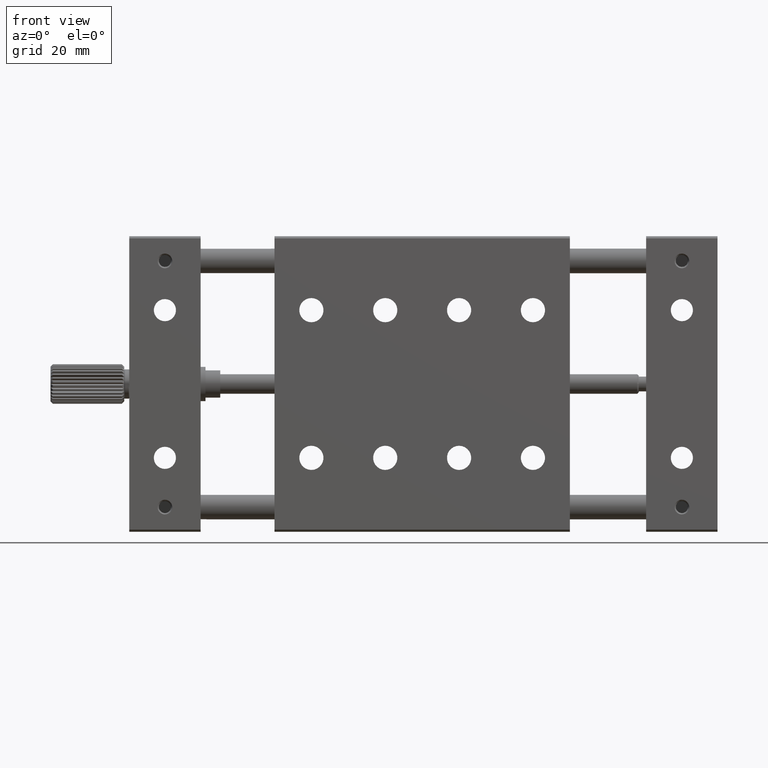
[diagram: clean part render]
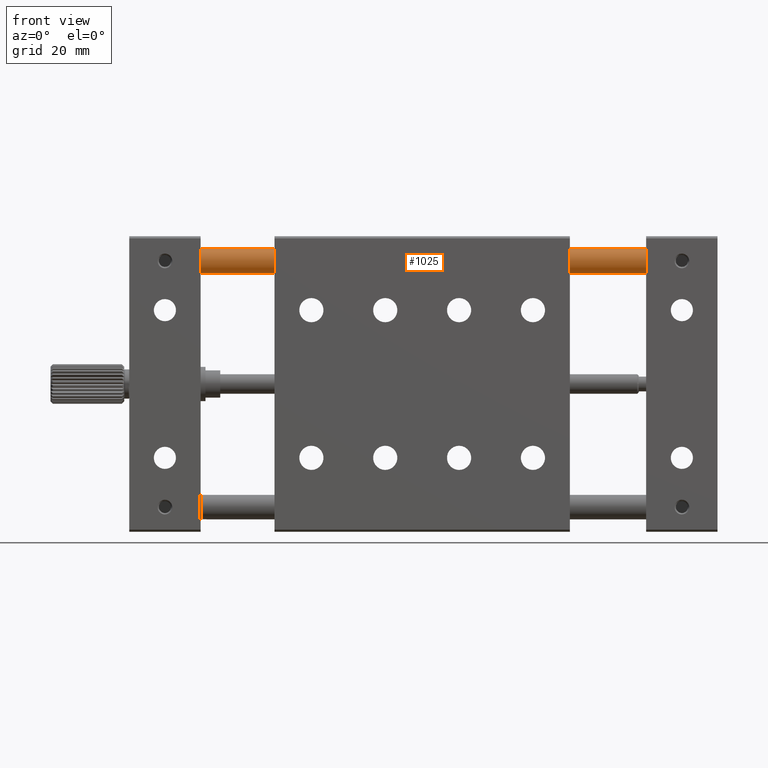
[diagram: same view with one face highlighted and labeled with its STEP entity id]
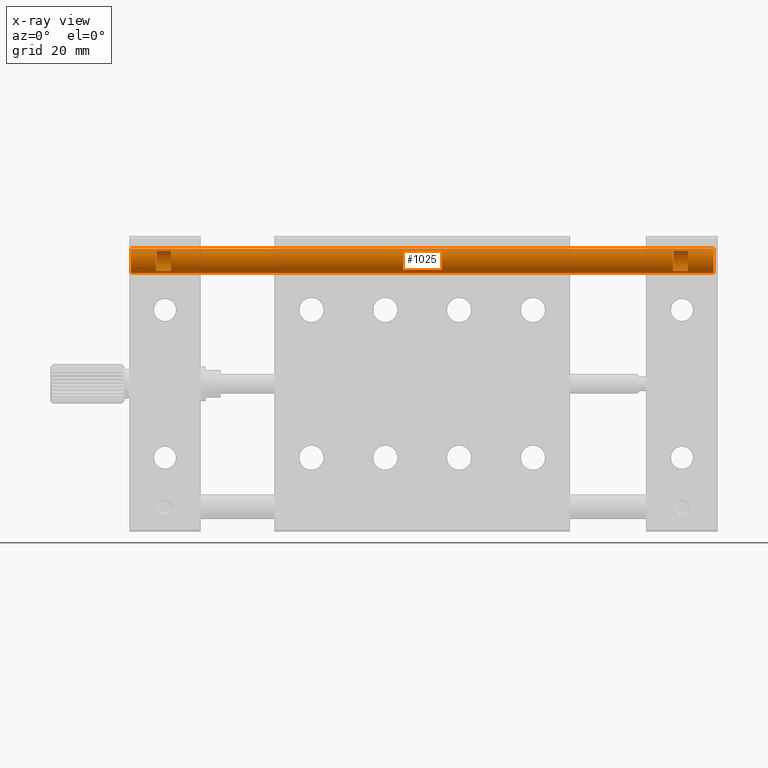
[diagram: x-ray of the same camera — body ghosted, the highlighted face saturated]
A machine part, front view. The second image highlights one B-rep face of the part: STEP entity #1025.
The next image is the same camera in x-ray: the body ghosted, the highlighted face saturated — about 0% of this face is hidden behind the body in this view.
In plain terms, the highlighted cylindrical surface (bore or boss wall) has radius 2.4995 mm, axis along (1, 0, 0).
Its self-contained STEP definition (entity closure, byte-faithful):
#71 = CARTESIAN_POINT ( 'NONE',  ( 5.500000000000003553, 3.499999999999999556, -6.999374964832771440 ) ) ;
#140 = CIRCLE ( 'NONE', #3387, 2.499500000000009603 ) ;
#282 = ORIENTED_EDGE ( 'NONE', *, *, #4574, .T. ) ;
#491 = CARTESIAN_POINT ( 'NONE',  ( 8.499999999999994671, 3.499999999999999556, -3.000625035167228116 ) ) ;
#526 = LINE ( 'NONE', #5251, #7253 ) ;
#538 = EDGE_CURVE ( 'NONE', #5456, #6959, #526, .T. ) ;
#545 = AXIS2_PLACEMENT_3D ( 'NONE', #4207, #674, #5357 ) ;
#597 = VERTEX_POINT ( 'NONE', #4059 ) ;
#652 = DIRECTION ( 'NONE',  ( 1.000000000000000000, 0.000000000000000000, 0.000000000000000000 ) ) ;
#674 = DIRECTION ( 'NONE',  ( -1.000000000000000000, -0.000000000000000000, -0.000000000000000000 ) ) ;
#915 = ORIENTED_EDGE ( 'NONE', *, *, #5325, .T. ) ;
#1025 = ADVANCED_FACE ( 'NONE', ( #3532, #6765, #5521, #4767 ), #2169, .T. ) ;
#1242 = DIRECTION ( 'NONE',  ( -1.000000000000000000, -0.000000000000000000, -0.000000000000000000 ) ) ;
#1253 = VECTOR ( 'NONE', #4603, 1000.000000000000000 ) ;
#1444 = DIRECTION ( 'NONE',  ( 0.000000000000000000, 1.000000000000000000, 0.000000000000000000 ) ) ;
#1612 = EDGE_CURVE ( 'NONE', #6075, #6075, #4016, .T. ) ;
#1617 = ORIENTED_EDGE ( 'NONE', *, *, #2295, .T. ) ;
#1841 = VERTEX_POINT ( 'NONE', #4010 ) ;
#1863 = EDGE_CURVE ( 'NONE', #3898, #3898, #6988, .T. ) ;
#2023 = CARTESIAN_POINT ( 'NONE',  ( 110.5000000000000000, 5.000000000000000000, -5.000000000000000000 ) ) ;
#2169 = CYLINDRICAL_SURFACE ( 'NONE', #7551, 2.499500000000009603 ) ;
#2295 = EDGE_CURVE ( 'NONE', #1841, #7139, #6298, .T. ) ;
#2635 = AXIS2_PLACEMENT_3D ( 'NONE', #3504, #5536, #1444 ) ;
#2639 = EDGE_LOOP ( 'NONE', ( #4743 ) ) ;
#2800 = EDGE_CURVE ( 'NONE', #6016, #5456, #4320, .T. ) ;
#2838 = CARTESIAN_POINT ( 'NONE',  ( 113.5000000000000000, 3.499999999999998668, -6.999374964832771440 ) ) ;
#2873 = CARTESIAN_POINT ( 'NONE',  ( 118.7000000000000028, 5.000000000000000000, -5.000000000000000000 ) ) ;
#2900 = AXIS2_PLACEMENT_3D ( 'NONE', #6713, #7511, #5338 ) ;
#3172 = EDGE_LOOP ( 'NONE', ( #5691, #4496, #282, #1617 ) ) ;
#3249 = EDGE_LOOP ( 'NONE', ( #915, #5214, #8377, #3883 ) ) ;
#3387 = AXIS2_PLACEMENT_3D ( 'NONE', #6699, #8022, #8601 ) ;
#3504 = CARTESIAN_POINT ( 'NONE',  ( 8.499999999999992895, 5.000000000000000000, -5.000000000000000000 ) ) ;
#3532 = FACE_BOUND ( 'NONE', #3172, .T. ) ;
#3806 = LINE ( 'NONE', #6514, #1253 ) ;
#3839 = ORIENTED_EDGE ( 'NONE', *, *, #1863, .T. ) ;
#3883 = ORIENTED_EDGE ( 'NONE', *, *, #4688, .T. ) ;
#3898 = VERTEX_POINT ( 'NONE', #3994 ) ;
#3994 = CARTESIAN_POINT ( 'NONE',  ( 0.3000000000000085931, 7.499500000000010047, -5.000000000000000000 ) ) ;
#4010 = CARTESIAN_POINT ( 'NONE',  ( 110.5000000000000000, 3.499999999999998668, -6.999374964832771440 ) ) ;
#4016 = CIRCLE ( 'NONE', #5855, 2.499500000000009603 ) ;
#4052 = DIRECTION ( 'NONE',  ( 1.000000000000000000, 0.000000000000000000, 0.000000000000000000 ) ) ;
#4059 = CARTESIAN_POINT ( 'NONE',  ( 113.5000000000000000, 3.499999999999999112, -3.000625035167228116 ) ) ;
#4207 = CARTESIAN_POINT ( 'NONE',  ( 5.500000000000005329, 5.000000000000000000, -5.000000000000000000 ) ) ;
#4320 = CIRCLE ( 'NONE', #2635, 2.499500000000009603 ) ;
#4418 = VERTEX_POINT ( 'NONE', #2838 ) ;
#4496 = ORIENTED_EDGE ( 'NONE', *, *, #6797, .T. ) ;
#4574 = EDGE_CURVE ( 'NONE', #4418, #1841, #3806, .T. ) ;
#4603 = DIRECTION ( 'NONE',  ( -1.000000000000000000, -0.000000000000000000, -0.000000000000000000 ) ) ;
#4688 = EDGE_CURVE ( 'NONE', #6959, #5639, #6478, .T. ) ;
#4705 = DIRECTION ( 'NONE',  ( -1.000000000000000000, -0.000000000000000000, -0.000000000000000000 ) ) ;
#4743 = ORIENTED_EDGE ( 'NONE', *, *, #1612, .T. ) ;
#4767 = FACE_OUTER_BOUND ( 'NONE', #2639, .T. ) ;
#4858 = DIRECTION ( 'NONE',  ( -1.000000000000000000, -0.000000000000000000, -0.000000000000000000 ) ) ;
#5175 = CARTESIAN_POINT ( 'NONE',  ( 110.5000000000000000, 3.499999999999999112, -3.000625035167228116 ) ) ;
#5214 = ORIENTED_EDGE ( 'NONE', *, *, #2800, .T. ) ;
#5251 = CARTESIAN_POINT ( 'NONE',  ( 119.0000000000000142, 3.499999999999997780, -6.999374964832771440 ) ) ;
#5325 = EDGE_CURVE ( 'NONE', #5639, #6016, #7508, .T. ) ;
#5338 = DIRECTION ( 'NONE',  ( 0.000000000000000000, 1.000000000000000000, 0.000000000000000000 ) ) ;
#5349 = VECTOR ( 'NONE', #4052, 1000.000000000000000 ) ;
#5357 = DIRECTION ( 'NONE',  ( 0.000000000000000000, 1.000000000000000000, 0.000000000000000000 ) ) ;
#5429 = DIRECTION ( 'NONE',  ( 0.000000000000000000, 1.000000000000000000, 0.000000000000000000 ) ) ;
#5456 = VERTEX_POINT ( 'NONE', #6435 ) ;
#5521 = FACE_BOUND ( 'NONE', #3249, .T. ) ;
#5536 = DIRECTION ( 'NONE',  ( 1.000000000000000000, 0.000000000000000000, 0.000000000000000000 ) ) ;
#5639 = VERTEX_POINT ( 'NONE', #8507 ) ;
#5656 = DIRECTION ( 'NONE',  ( 0.000000000000000000, 1.000000000000000000, 0.000000000000000000 ) ) ;
#5691 = ORIENTED_EDGE ( 'NONE', *, *, #6519, .T. ) ;
#5850 = EDGE_LOOP ( 'NONE', ( #3839 ) ) ;
#5855 = AXIS2_PLACEMENT_3D ( 'NONE', #2873, #4858, #5656 ) ;
#5870 = AXIS2_PLACEMENT_3D ( 'NONE', #2023, #4705, #8159 ) ;
#6016 = VERTEX_POINT ( 'NONE', #491 ) ;
#6075 = VERTEX_POINT ( 'NONE', #6655 ) ;
#6298 = CIRCLE ( 'NONE', #5870, 2.499500000000009603 ) ;
#6435 = CARTESIAN_POINT ( 'NONE',  ( 8.499999999999994671, 3.499999999999999556, -6.999374964832771440 ) ) ;
#6478 = CIRCLE ( 'NONE', #545, 2.499500000000009603 ) ;
#6514 = CARTESIAN_POINT ( 'NONE',  ( 119.0000000000000142, 3.499999999999997780, -6.999374964832771440 ) ) ;
#6519 = EDGE_CURVE ( 'NONE', #7139, #597, #6928, .T. ) ;
#6655 = CARTESIAN_POINT ( 'NONE',  ( 118.7000000000000028, 7.499500000000010047, -5.000000000000000000 ) ) ;
#6699 = CARTESIAN_POINT ( 'NONE',  ( 113.5000000000000000, 5.000000000000000000, -5.000000000000000000 ) ) ;
#6713 = CARTESIAN_POINT ( 'NONE',  ( 0.3000000000000085931, 5.000000000000000000, -5.000000000000000000 ) ) ;
#6765 = FACE_OUTER_BOUND ( 'NONE', #5850, .T. ) ;
#6797 = EDGE_CURVE ( 'NONE', #597, #4418, #140, .T. ) ;
#6928 = LINE ( 'NONE', #7510, #5349 ) ;
#6959 = VERTEX_POINT ( 'NONE', #71 ) ;
#6988 = CIRCLE ( 'NONE', #2900, 2.499500000000009603 ) ;
#7139 = VERTEX_POINT ( 'NONE', #5175 ) ;
#7253 = VECTOR ( 'NONE', #1242, 1000.000000000000000 ) ;
#7470 = DIRECTION ( 'NONE',  ( 1.000000000000000000, 0.000000000000000000, 0.000000000000000000 ) ) ;
#7508 = LINE ( 'NONE', #7543, #8011 ) ;
#7510 = CARTESIAN_POINT ( 'NONE',  ( 119.0000000000000142, 3.499999999999998224, -3.000625035167228560 ) ) ;
#7511 = DIRECTION ( 'NONE',  ( 1.000000000000000000, 0.000000000000000000, 0.000000000000000000 ) ) ;
#7543 = CARTESIAN_POINT ( 'NONE',  ( 119.0000000000000142, 3.499999999999998224, -3.000625035167228560 ) ) ;
#7551 = AXIS2_PLACEMENT_3D ( 'NONE', #8128, #7470, #5429 ) ;
#8011 = VECTOR ( 'NONE', #652, 1000.000000000000000 ) ;
#8022 = DIRECTION ( 'NONE',  ( 1.000000000000000000, 0.000000000000000000, 0.000000000000000000 ) ) ;
#8128 = CARTESIAN_POINT ( 'NONE',  ( 119.0000000000000142, 5.000000000000000000, -5.000000000000000000 ) ) ;
#8159 = DIRECTION ( 'NONE',  ( 0.000000000000000000, 1.000000000000000000, 0.000000000000000000 ) ) ;
#8377 = ORIENTED_EDGE ( 'NONE', *, *, #538, .T. ) ;
#8507 = CARTESIAN_POINT ( 'NONE',  ( 5.500000000000003553, 3.499999999999999556, -3.000625035167228116 ) ) ;
#8601 = DIRECTION ( 'NONE',  ( 0.000000000000000000, 1.000000000000000000, 0.000000000000000000 ) ) ;